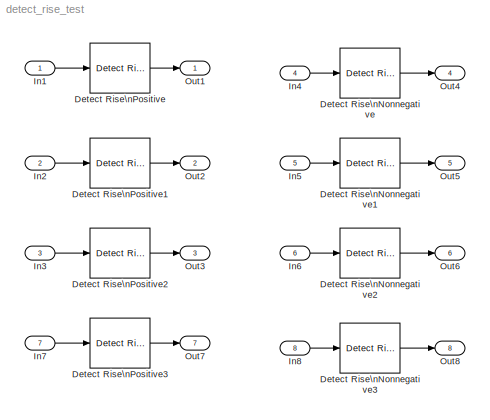
MODEL detect_rise_test
KIND model
BLOCK [Reference] Detect Rise\nNonnegative  REF=simulink/Logic and Bit\nOperations/Detect Rise\nNonnegative
  InputProcessing = Inherited
  OutDataTypeStr = boolean
  Ports = [1, 1]
  SID = 121
  SourceBlock = simulink/Logic and Bit\nOperations/Detect Rise\nNonnegative
  SourceProductBaseCode = SL
  SourceProductName = Simulink
  SourceType = Detect Rise Nonnegative
  vinit = 0
BLOCK [Reference] Detect Rise\nNonnegative1  REF=simulink/Logic and Bit\nOperations/Detect Rise\nNonnegative
  InputProcessing = Inherited
  OutDataTypeStr = boolean
  Ports = [1, 1]
  SID = 125
  SourceBlock = simulink/Logic and Bit\nOperations/Detect Rise\nNonnegative
  SourceProductBaseCode = SL
  SourceProductName = Simulink
  SourceType = Detect Rise Nonnegative
  vinit = 0
BLOCK [Reference] Detect Rise\nNonnegative2  REF=simulink/Logic and Bit\nOperations/Detect Rise\nNonnegative
  InputProcessing = Inherited
  OutDataTypeStr = boolean
  Ports = [1, 1]
  SID = 126
  SourceBlock = simulink/Logic and Bit\nOperations/Detect Rise\nNonnegative
  SourceProductBaseCode = SL
  SourceProductName = Simulink
  SourceType = Detect Rise Nonnegative
  vinit = 0
BLOCK [Reference] Detect Rise\nNonnegative3  REF=simulink/Logic and Bit\nOperations/Detect Rise\nNonnegative
  InputProcessing = Inherited
  OutDataTypeStr = boolean
  Ports = [1, 1]
  SID = 129
  SourceBlock = simulink/Logic and Bit\nOperations/Detect Rise\nNonnegative
  SourceProductBaseCode = SL
  SourceProductName = Simulink
  SourceType = Detect Rise Nonnegative
  vinit = 0
BLOCK [Reference] Detect Rise\nPositive  REF=simulink/Logic and Bit\nOperations/Detect Rise\nPositive
  InputProcessing = Inherited
  OutDataTypeStr = boolean
  Ports = [1, 1]
  SID = 122
  SourceBlock = simulink/Logic and Bit\nOperations/Detect Rise\nPositive
  SourceProductBaseCode = SL
  SourceProductName = Simulink
  SourceType = Detect Rise Positive
  vinit = 0
BLOCK [Reference] Detect Rise\nPositive1  REF=simulink/Logic and Bit\nOperations/Detect Rise\nPositive
  InputProcessing = Inherited
  OutDataTypeStr = boolean
  Ports = [1, 1]
  SID = 123
  SourceBlock = simulink/Logic and Bit\nOperations/Detect Rise\nPositive
  SourceProductBaseCode = SL
  SourceProductName = Simulink
  SourceType = Detect Rise Positive
  vinit = 0
BLOCK [Reference] Detect Rise\nPositive2  REF=simulink/Logic and Bit\nOperations/Detect Rise\nPositive
  InputProcessing = Inherited
  OutDataTypeStr = boolean
  Ports = [1, 1]
  SID = 124
  SourceBlock = simulink/Logic and Bit\nOperations/Detect Rise\nPositive
  SourceProductBaseCode = SL
  SourceProductName = Simulink
  SourceType = Detect Rise Positive
  vinit = 0
BLOCK [Reference] Detect Rise\nPositive3  REF=simulink/Logic and Bit\nOperations/Detect Rise\nPositive
  InputProcessing = Inherited
  OutDataTypeStr = boolean
  Ports = [1, 1]
  SID = 130
  SourceBlock = simulink/Logic and Bit\nOperations/Detect Rise\nPositive
  SourceProductBaseCode = SL
  SourceProductName = Simulink
  SourceType = Detect Rise Positive
  vinit = 0
BLOCK [Inport] In1
  IconDisplay = Port number
  PortDimensions = 1
  SID = 103
BLOCK [Inport] In2
  IconDisplay = Port number
  Port = 2
  PortDimensions = 5
  SID = 104
BLOCK [Inport] In3
  IconDisplay = Port number
  OutDataTypeStr = int8
  Port = 3
  PortDimensions = [2 3]
  SID = 105
BLOCK [Inport] In4
  IconDisplay = Port number
  Port = 4
  PortDimensions = 1
  SID = 106
BLOCK [Inport] In5
  IconDisplay = Port number
  Port = 5
  PortDimensions = 5
  SID = 107
BLOCK [Inport] In6
  IconDisplay = Port number
  OutDataTypeStr = int8
  Port = 6
  PortDimensions = [2 3]
  SID = 108
BLOCK [Inport] In7
  IconDisplay = Port number
  OutDataTypeStr = boolean
  Port = 7
  PortDimensions = 1
  SID = 127
BLOCK [Inport] In8
  IconDisplay = Port number
  OutDataTypeStr = boolean
  Port = 8
  PortDimensions = 1
  SID = 128
BLOCK [Outport] Out1
  IconDisplay = Port number
  SID = 115
BLOCK [Outport] Out2
  IconDisplay = Port number
  Port = 2
  SID = 116
BLOCK [Outport] Out3
  IconDisplay = Port number
  Port = 3
  SID = 117
BLOCK [Outport] Out4
  IconDisplay = Port number
  Port = 4
  SID = 118
BLOCK [Outport] Out5
  IconDisplay = Port number
  Port = 5
  SID = 119
BLOCK [Outport] Out6
  IconDisplay = Port number
  Port = 6
  SID = 120
BLOCK [Outport] Out7
  IconDisplay = Port number
  Port = 7
  SID = 131
BLOCK [Outport] Out8
  IconDisplay = Port number
  Port = 8
  SID = 132
LINE Detect Rise\nNonnegative1:1 -> Out5:1
LINE Detect Rise\nNonnegative2:1 -> Out6:1
LINE Detect Rise\nNonnegative3:1 -> Out8:1
LINE Detect Rise\nNonnegative:1 -> Out4:1
LINE Detect Rise\nPositive1:1 -> Out2:1
LINE Detect Rise\nPositive2:1 -> Out3:1
LINE Detect Rise\nPositive3:1 -> Out7:1
LINE Detect Rise\nPositive:1 -> Out1:1
LINE In1:1 -> Detect Rise\nPositive:1
LINE In2:1 -> Detect Rise\nPositive1:1
LINE In3:1 -> Detect Rise\nPositive2:1
LINE In4:1 -> Detect Rise\nNonnegative:1
LINE In5:1 -> Detect Rise\nNonnegative1:1
LINE In6:1 -> Detect Rise\nNonnegative2:1
LINE In7:1 -> Detect Rise\nPositive3:1
LINE In8:1 -> Detect Rise\nNonnegative3:1
